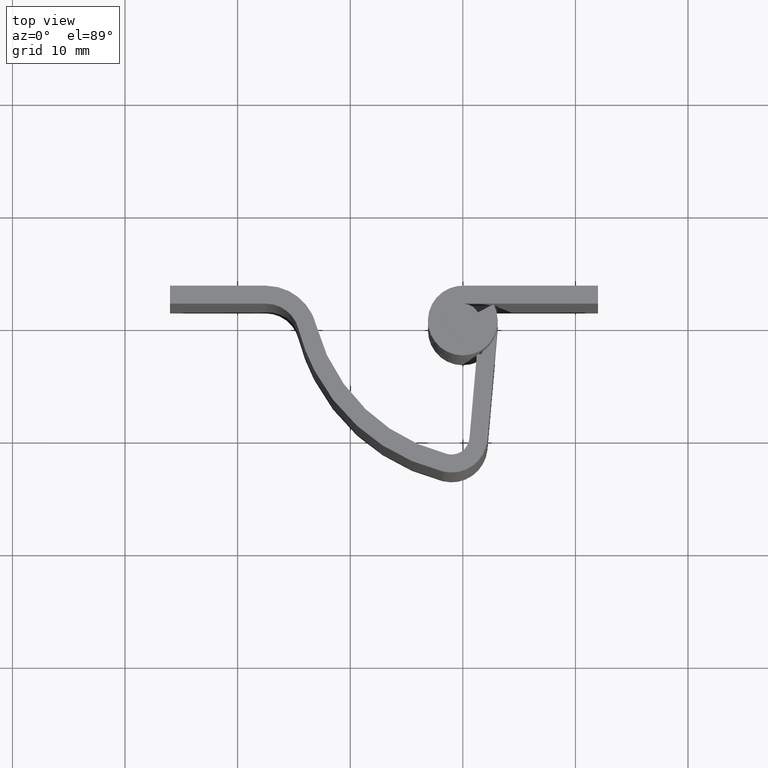
[diagram: clean part render]
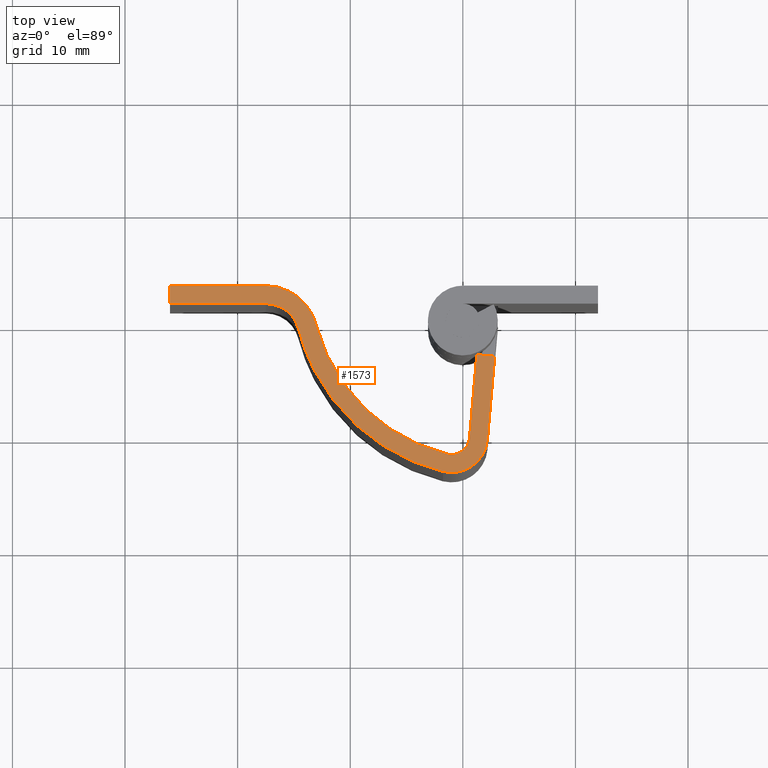
[diagram: same view with one face highlighted and labeled with its STEP entity id]
A machine part, top view. The second image highlights one B-rep face of the part: STEP entity #1573.
In plain terms, the highlighted face is a freeform B-spline surface patch.
Its self-contained STEP definition (entity closure, byte-faithful):
#902=CARTESIAN_POINT('',(1.240510640599590,-3.031453000000000,50.000006999999897));
#903=VERTEX_POINT('',#902);
#909=CARTESIAN_POINT('',(2.834421485123410,-3.170903217421611,50.000006999999897));
#910=VERTEX_POINT('',#909);
#911=CARTESIAN_POINT('',(2.834421485123410,-3.170903217421611,50.000006999999897));
#912=CARTESIAN_POINT('',(1.240510640599590,-3.031453000000000,50.000006999999897));
#913=QUASI_UNIFORM_CURVE('',1,(#911,#912),.UNSPECIFIED.,.F.,.U.);
#914=EDGE_CURVE('',#910,#903,#913,.T.);
#1105=CARTESIAN_POINT('',(-17.499999707891000,1.500000000000000,50.000006999999897));
#1106=VERTEX_POINT('',#1105);
#1107=CARTESIAN_POINT('',(-26.0,1.500000000000000,50.000006999999897));
#1108=VERTEX_POINT('',#1107);
#1109=CARTESIAN_POINT('',(-17.499999707891000,1.500000000000000,50.000006999999897));
#1110=CARTESIAN_POINT('',(-26.0,1.500000000000000,50.000006999999897));
#1111=QUASI_UNIFORM_CURVE('',1,(#1109,#1110),.UNSPECIFIED.,.F.,.U.);
#1112=EDGE_CURVE('',#1106,#1108,#1111,.T.);
#1150=CARTESIAN_POINT('',(-14.596521837809760,-0.745138252427188,50.000006999999897));
#1151=VERTEX_POINT('',#1150);
#1152=CARTESIAN_POINT('',(-17.499999707891000,1.500000000000000,50.000006999999897));
#1153=CARTESIAN_POINT('',(-15.180224921009920,1.500000000000000,50.000006999999897));
#1154=CARTESIAN_POINT('',(-14.596521837809791,-0.745138252427194,50.000006999999897));
#1162=(BOUNDED_CURVE()B_SPLINE_CURVE(2,(#1152,#1153,#1154),.UNSPECIFIED.,.F.,.U.)CURVE()GEOMETRIC_REPRESENTATION_ITEM()QUASI_UNIFORM_CURVE()RATIONAL_B_SPLINE_CURVE((1.0,0.791081722239956,1.0))REPRESENTATION_ITEM(''));
#1163=EDGE_CURVE('',#1106,#1151,#1162,.T.);
#1203=CARTESIAN_POINT('',(-1.765684675591115,-13.407421549093240,50.000006999999897));
#1204=VERTEX_POINT('',#1203);
#1205=CARTESIAN_POINT('',(-1.765684675591118,-13.407421549093240,50.000006999999897));
#1206=CARTESIAN_POINT('',(-11.956028212068336,-10.901454734328649,50.000006999999897));
#1207=CARTESIAN_POINT('',(-14.596521837809760,-0.745138252427186,50.000006999999897));
#1215=(BOUNDED_CURVE()B_SPLINE_CURVE(2,(#1205,#1206,#1207),.UNSPECIFIED.,.F.,.U.)CURVE()GEOMETRIC_REPRESENTATION_ITEM()QUASI_UNIFORM_CURVE()RATIONAL_B_SPLINE_CURVE((1.0,0.858911736249594,1.0))REPRESENTATION_ITEM(''));
#1216=EDGE_CURVE('',#1204,#1151,#1215,.T.);
#1256=CARTESIAN_POINT('',(2.186302000000000,-10.578900000000001,50.000006999999897));
#1257=VERTEX_POINT('',#1256);
#1258=CARTESIAN_POINT('',(2.186302000000000,-10.578900000000001,50.000006999999897));
#1259=CARTESIAN_POINT('',(2.058000113642054,-12.045401166707506,50.000006999999897));
#1260=CARTESIAN_POINT('',(0.860914110500684,-12.902181270981931,50.000006999999897));
#1261=CARTESIAN_POINT('',(-0.336171892640687,-13.758961375256348,50.000006999999897));
#1262=CARTESIAN_POINT('',(-1.765684675591117,-13.407421549093250,50.000006999999897));
#1270=(BOUNDED_CURVE()B_SPLINE_CURVE(2,(#1258,#1259,#1260,#1261,#1262),.UNSPECIFIED.,.F.,.U.)B_SPLINE_CURVE_WITH_KNOTS((3,2,3),(0.0,0.500000000000000,1.0),.UNSPECIFIED.)CURVE()GEOMETRIC_REPRESENTATION_ITEM()RATIONAL_B_SPLINE_CURVE((1.0,0.908479357565129,1.0,0.908479357565129,1.0))REPRESENTATION_ITEM(''));
#1271=EDGE_CURVE('',#1257,#1204,#1270,.T.);
#1313=CARTESIAN_POINT('',(0.592392108413458,-10.439452760833380,50.000006999999897));
#1314=VERTEX_POINT('',#1313);
#1315=CARTESIAN_POINT('',(-1.383600845778470,-11.853712701581021,50.000006999999897));
#1316=VERTEX_POINT('',#1315);
#1317=CARTESIAN_POINT('',(0.592392108413458,-10.439452760833380,50.000006999999897));
#1318=CARTESIAN_POINT('',(0.528240779602886,-11.172702937900315,50.000006999999897));
#1319=CARTESIAN_POINT('',(-0.070302000344896,-11.601092662017550,50.000006999999897));
#1320=CARTESIAN_POINT('',(-0.668844780292679,-12.029482386134784,50.000006999999897));
#1321=CARTESIAN_POINT('',(-1.383600845778470,-11.853712701581021,50.000006999999897));
#1329=(BOUNDED_CURVE()B_SPLINE_CURVE(2,(#1317,#1318,#1319,#1320,#1321),.UNSPECIFIED.,.F.,.U.)B_SPLINE_CURVE_WITH_KNOTS((3,2,3),(0.0,0.500000000000000,1.0),.UNSPECIFIED.)CURVE()GEOMETRIC_REPRESENTATION_ITEM()RATIONAL_B_SPLINE_CURVE((1.0,0.908479437574394,1.0,0.908479437574394,1.0))REPRESENTATION_ITEM(''));
#1330=EDGE_CURVE('',#1314,#1316,#1329,.T.);
#1378=CARTESIAN_POINT('',(-13.048000903239039,-0.342546873786411,50.000006999999897));
#1379=VERTEX_POINT('',#1378);
#1380=CARTESIAN_POINT('',(-1.383600845778468,-11.853712701581010,50.000006999999897));
#1381=CARTESIAN_POINT('',(-10.647550965998462,-9.575562617963074,50.000006999999890));
#1382=CARTESIAN_POINT('',(-13.048000903239039,-0.342546873786408,50.000006999999897));
#1390=(BOUNDED_CURVE()B_SPLINE_CURVE(2,(#1380,#1381,#1382),.UNSPECIFIED.,.F.,.U.)CURVE()GEOMETRIC_REPRESENTATION_ITEM()QUASI_UNIFORM_CURVE()RATIONAL_B_SPLINE_CURVE((1.0,0.858911711816661,1.0))REPRESENTATION_ITEM(''));
#1391=EDGE_CURVE('',#1316,#1379,#1390,.T.);
#1431=CARTESIAN_POINT('',(-17.500000000000000,3.099998000000000,50.000006999999897));
#1432=VERTEX_POINT('',#1431);
#1433=CARTESIAN_POINT('',(-17.500000000000000,3.099997999999995,50.000006999999897));
#1434=CARTESIAN_POINT('',(-13.943012512271443,3.099997854689132,50.000006999999890));
#1435=CARTESIAN_POINT('',(-13.048000903239050,-0.342546873786415,50.000006999999897));
#1443=(BOUNDED_CURVE()B_SPLINE_CURVE(2,(#1433,#1434,#1435),.UNSPECIFIED.,.F.,.U.)CURVE()GEOMETRIC_REPRESENTATION_ITEM()QUASI_UNIFORM_CURVE()RATIONAL_B_SPLINE_CURVE((1.0,0.791081765416665,1.0))REPRESENTATION_ITEM(''));
#1444=EDGE_CURVE('',#1432,#1379,#1443,.T.);
#1475=CARTESIAN_POINT('',(-26.0,3.099998000000000,50.000006999999897));
#1476=VERTEX_POINT('',#1475);
#1477=CARTESIAN_POINT('',(-26.0,3.099998000000000,50.000006999999897));
#1478=CARTESIAN_POINT('',(-17.500000000000000,3.099998000000000,50.000006999999897));
#1479=QUASI_UNIFORM_CURVE('',1,(#1477,#1478),.UNSPECIFIED.,.F.,.U.);
#1480=EDGE_CURVE('',#1476,#1432,#1479,.T.);
#1503=CARTESIAN_POINT('',(-26.0,1.500000000000000,50.000006999999897));
#1504=CARTESIAN_POINT('',(-26.0,3.099998000000000,50.000006999999897));
#1505=QUASI_UNIFORM_CURVE('',1,(#1503,#1504),.UNSPECIFIED.,.F.,.U.);
#1506=EDGE_CURVE('',#1108,#1476,#1505,.T.);
#1546=CARTESIAN_POINT('',(-27.440279297295209,-14.328962646169810,50.000006999999897));
#1547=CARTESIAN_POINT('',(4.274701555818072,-14.328962646169810,50.000006999999897));
#1548=CARTESIAN_POINT('',(-27.440279297295209,3.929158454855941,50.000006999999897));
#1549=CARTESIAN_POINT('',(4.274701555818072,3.929158454855941,50.000006999999897));
#1550=B_SPLINE_SURFACE_WITH_KNOTS('',1,1,((#1546,#1548),(#1547,#1549)),.UNSPECIFIED.,.F.,.F.,.U.,(2,2),(2,2),(0.0,31.714980853113289),(0.0,18.258121101025750),.UNSPECIFIED.);
#1551=ORIENTED_EDGE('',*,*,#914,.T.);
#1552=CARTESIAN_POINT('',(0.592392108413458,-10.439452760833380,50.000006999999897));
#1553=CARTESIAN_POINT('',(1.240510640599590,-3.031453000000000,50.000006999999897));
#1554=QUASI_UNIFORM_CURVE('',1,(#1552,#1553),.UNSPECIFIED.,.F.,.U.);
#1555=EDGE_CURVE('',#1314,#903,#1554,.T.);
#1556=ORIENTED_EDGE('',*,*,#1555,.F.);
#1557=ORIENTED_EDGE('',*,*,#1330,.T.);
#1558=ORIENTED_EDGE('',*,*,#1391,.T.);
#1559=ORIENTED_EDGE('',*,*,#1444,.F.);
#1560=ORIENTED_EDGE('',*,*,#1480,.F.);
#1561=ORIENTED_EDGE('',*,*,#1506,.F.);
#1562=ORIENTED_EDGE('',*,*,#1112,.F.);
#1563=ORIENTED_EDGE('',*,*,#1163,.T.);
#1564=ORIENTED_EDGE('',*,*,#1216,.F.);
#1565=ORIENTED_EDGE('',*,*,#1271,.F.);
#1566=CARTESIAN_POINT('',(2.834421485123410,-3.170903217421611,50.000006999999897));
#1567=CARTESIAN_POINT('',(2.186302000000000,-10.578900000000001,50.000006999999897));
#1568=QUASI_UNIFORM_CURVE('',1,(#1566,#1567),.UNSPECIFIED.,.F.,.U.);
#1569=EDGE_CURVE('',#910,#1257,#1568,.T.);
#1570=ORIENTED_EDGE('',*,*,#1569,.F.);
#1571=EDGE_LOOP('',(#1551,#1556,#1557,#1558,#1559,#1560,#1561,#1562,#1563,#1564,#1565,#1570));
#1572=FACE_OUTER_BOUND('',#1571,.T.);
#1573=ADVANCED_FACE('',(#1572),#1550,.T.);